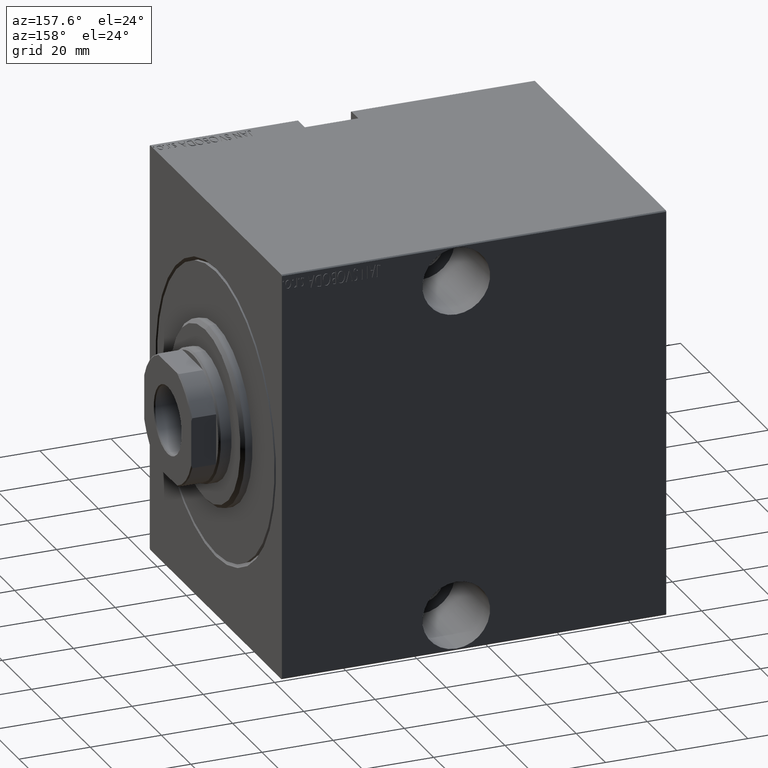
[diagram: clean part render]
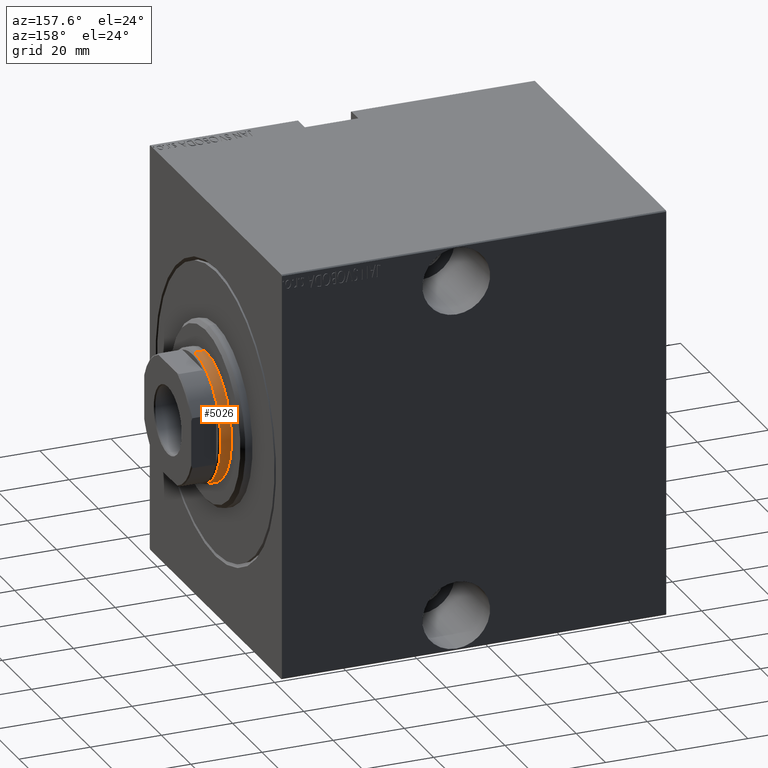
[diagram: same view with one face highlighted and labeled with its STEP entity id]
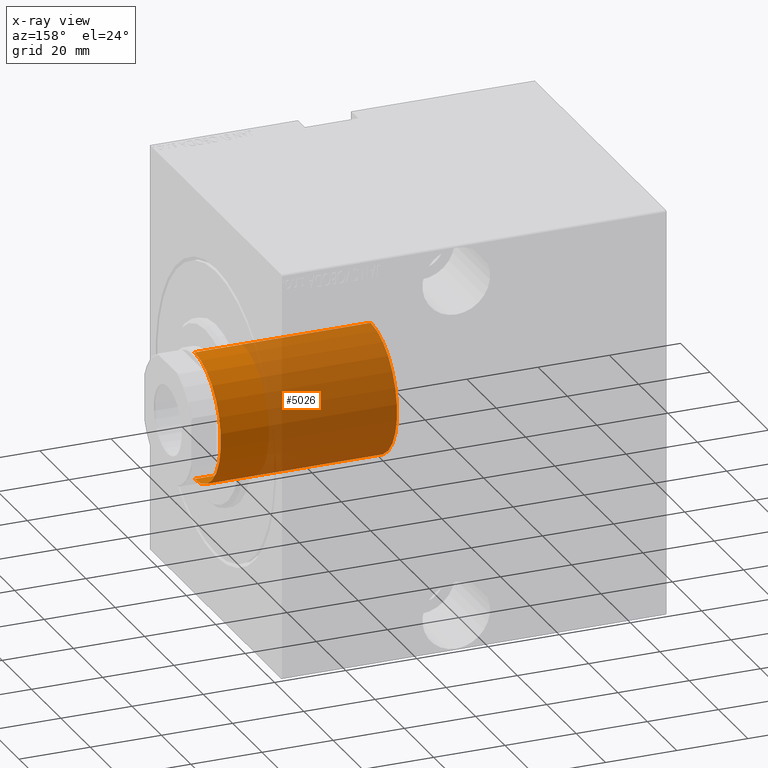
[diagram: x-ray of the same camera — body ghosted, the highlighted face saturated]
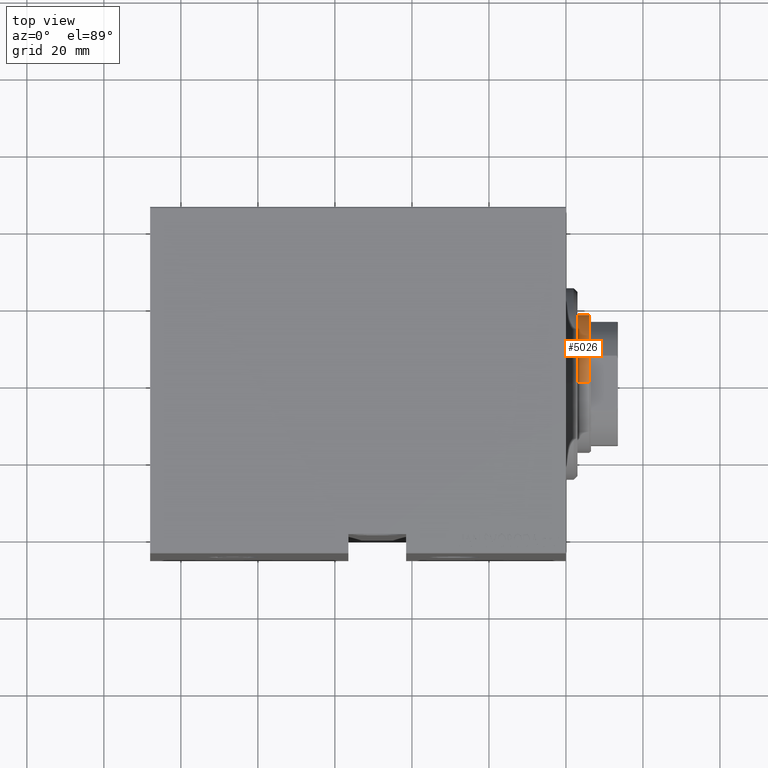
[diagram: same view with one face highlighted and labeled with its STEP entity id]
A machine part, auxiliary view. The second image highlights one B-rep face of the part: STEP entity #5026.
The next image is the same camera in x-ray: the body ghosted, the highlighted face saturated — about 72% of this face is hidden behind the body in this view.
A second angle (top view) of the same face is appended — the face is thin or edge-on in the first view.
In plain terms, the highlighted cylindrical surface (partial cylindrical patch) has radius 18 mm, axis along (-1, -0, 0).
Its self-contained STEP definition (entity closure, byte-faithful):
#1866 = VECTOR ( 'NONE', #11589, 1000.000000000000000 ) ;
#3460 = DIRECTION ( 'NONE',  ( -0.000000000000000000, -0.000000000000000000, -1.000000000000000000 ) ) ;
#5026 = ADVANCED_FACE ( 'NONE', ( #6900 ), #26238, .T. ) ;
#6271 = DIRECTION ( 'NONE',  ( -1.000000000000000000, 0.000000000000000000, 0.000000000000000000 ) ) ;
#6293 = VERTEX_POINT ( 'NONE', #22177 ) ;
#6900 = FACE_OUTER_BOUND ( 'NONE', #26914, .T. ) ;
#8770 = DIRECTION ( 'NONE',  ( 0.000000000000000000, 0.000000000000000000, -1.000000000000000000 ) ) ;
#9643 = CIRCLE ( 'NONE', #25433, 18.00000000000000000 ) ;
#11589 = DIRECTION ( 'NONE',  ( -0.000000000000000000, -0.000000000000000000, -1.000000000000000000 ) ) ;
#12849 = DIRECTION ( 'NONE',  ( 0.000000000000000000, 0.000000000000000000, 1.000000000000000000 ) ) ;
#12889 = AXIS2_PLACEMENT_3D ( 'NONE', #41876, #12849, #23139 ) ;
#13489 = ORIENTED_EDGE ( 'NONE', *, *, #18763, .F. ) ;
#15221 = CARTESIAN_POINT ( 'NONE',  ( 0.000000000000000000, 0.000000000000000000, 96.50000000000002842 ) ) ;
#15806 = VERTEX_POINT ( 'NONE', #33932 ) ;
#18097 = VERTEX_POINT ( 'NONE', #33217 ) ;
#18763 = EDGE_CURVE ( 'NONE', #15806, #36052, #27263, .T. ) ;
#19792 = CARTESIAN_POINT ( 'NONE',  ( 0.000000000000000000, 0.000000000000000000, 97.00000000000000000 ) ) ;
#22177 = CARTESIAN_POINT ( 'NONE',  ( 18.00000000000000000, 2.204364238465235428E-15, 47.00000000000000000 ) ) ;
#23139 = DIRECTION ( 'NONE',  ( 1.000000000000000000, 0.000000000000000000, 0.000000000000000000 ) ) ;
#25433 = AXIS2_PLACEMENT_3D ( 'NONE', #15221, #8770, #28327 ) ;
#25468 = CARTESIAN_POINT ( 'NONE',  ( 18.00000000000000000, 2.204364238465235428E-15, 97.00000000000000000 ) ) ;
#26238 = CYLINDRICAL_SURFACE ( 'NONE', #34477, 18.00000000000000000 ) ;
#26636 = EDGE_CURVE ( 'NONE', #6293, #36052, #31444, .T. ) ;
#26914 = EDGE_LOOP ( 'NONE', ( #35024, #41836, #35569, #13489 ) ) ;
#27263 = LINE ( 'NONE', #27479, #1866 ) ;
#27479 = CARTESIAN_POINT ( 'NONE',  ( -18.00000000000000000, 0.000000000000000000, 97.00000000000000000 ) ) ;
#28283 = CARTESIAN_POINT ( 'NONE',  ( -18.00000000000000000, 0.000000000000000000, 47.00000000000000000 ) ) ;
#28327 = DIRECTION ( 'NONE',  ( 1.000000000000000000, 0.000000000000000000, 0.000000000000000000 ) ) ;
#28711 = LINE ( 'NONE', #25468, #41880 ) ;
#28917 = DIRECTION ( 'NONE',  ( -0.000000000000000000, -0.000000000000000000, -1.000000000000000000 ) ) ;
#31444 = CIRCLE ( 'NONE', #12889, 18.00000000000000000 ) ;
#33217 = CARTESIAN_POINT ( 'NONE',  ( 18.00000000000000000, 2.204364238465235428E-15, 96.50000000000002842 ) ) ;
#33932 = CARTESIAN_POINT ( 'NONE',  ( -18.00000000000000000, 0.000000000000000000, 96.50000000000002842 ) ) ;
#34477 = AXIS2_PLACEMENT_3D ( 'NONE', #19792, #3460, #6271 ) ;
#34502 = EDGE_CURVE ( 'NONE', #15806, #18097, #9643, .T. ) ;
#35024 = ORIENTED_EDGE ( 'NONE', *, *, #34502, .T. ) ;
#35569 = ORIENTED_EDGE ( 'NONE', *, *, #26636, .T. ) ;
#36052 = VERTEX_POINT ( 'NONE', #28283 ) ;
#40495 = EDGE_CURVE ( 'NONE', #18097, #6293, #28711, .T. ) ;
#41836 = ORIENTED_EDGE ( 'NONE', *, *, #40495, .T. ) ;
#41876 = CARTESIAN_POINT ( 'NONE',  ( 0.000000000000000000, 0.000000000000000000, 47.00000000000000000 ) ) ;
#41880 = VECTOR ( 'NONE', #28917, 1000.000000000000000 ) ;